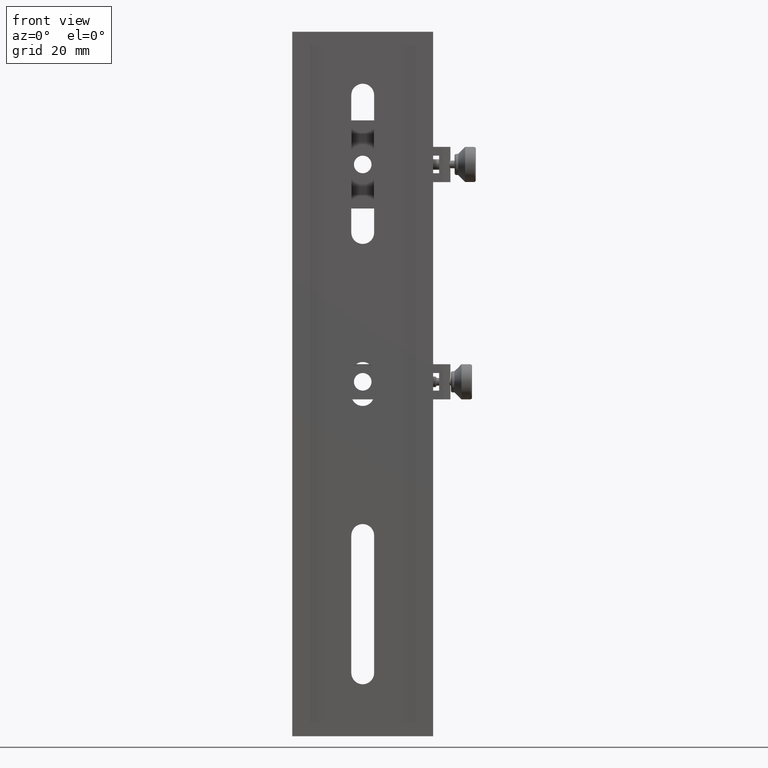
[diagram: clean part render]
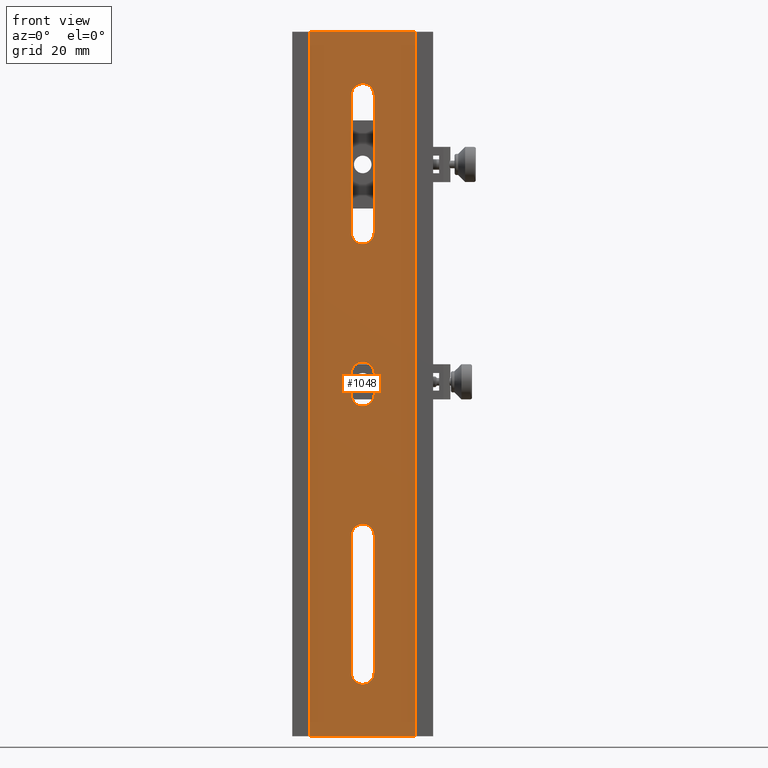
[diagram: same view with one face highlighted and labeled with its STEP entity id]
A machine part, front view. The second image highlights one B-rep face of the part: STEP entity #1048.
In plain terms, the highlighted planar face has unit normal (0, -1, 0).
Its self-contained STEP definition (entity closure, byte-faithful):
#56 = VECTOR ( 'NONE', #2789, 1000.000000000000000 ) ;
#76 = VERTEX_POINT ( 'NONE', #4436 ) ;
#87 = DIRECTION ( 'NONE',  ( -1.836970198721029934E-16, -1.000000000000000000, 0.000000000000000000 ) ) ;
#123 = CARTESIAN_POINT ( 'NONE',  ( 1.795495241083097500E-15, 81.99999999999998579, 5.999999999999996447 ) ) ;
#129 = CARTESIAN_POINT ( 'NONE',  ( -3.249999999999996003, -43.00000000000000711, 5.999999999999996447 ) ) ;
#178 = DIRECTION ( 'NONE',  ( -0.000000000000000000, 0.000000000000000000, 1.000000000000000000 ) ) ;
#186 = CARTESIAN_POINT ( 'NONE',  ( 3.249999999999996447, -5.970153145843339459E-16, 5.999999999999996447 ) ) ;
#194 = CIRCLE ( 'NONE', #3791, 3.249999999999997780 ) ;
#324 = VERTEX_POINT ( 'NONE', #5156 ) ;
#441 = EDGE_LOOP ( 'NONE', ( #1715, #2904, #1237, #5785 ) ) ;
#454 = EDGE_CURVE ( 'NONE', #324, #3837, #1674, .T. ) ;
#481 = CARTESIAN_POINT ( 'NONE',  ( 14.99999999999998579, 100.0000000000000000, 5.999999999999996447 ) ) ;
#489 = CARTESIAN_POINT ( 'NONE',  ( 3.249999999999996447, -3.000000000000000000, 5.999999999999996447 ) ) ;
#581 = ORIENTED_EDGE ( 'NONE', *, *, #1303, .F. ) ;
#613 = VERTEX_POINT ( 'NONE', #4920 ) ;
#623 = VECTOR ( 'NONE', #2086, 1000.000000000000000 ) ;
#634 = DIRECTION ( 'NONE',  ( -0.000000000000000000, 0.000000000000000000, 1.000000000000000000 ) ) ;
#635 = LINE ( 'NONE', #186, #6027 ) ;
#693 = DIRECTION ( 'NONE',  ( 1.000000000000000000, 0.000000000000000000, 0.000000000000000000 ) ) ;
#878 = AXIS2_PLACEMENT_3D ( 'NONE', #5486, #5945, #6372 ) ;
#925 = VECTOR ( 'NONE', #4264, 1000.000000000000000 ) ;
#932 = EDGE_CURVE ( 'NONE', #76, #1782, #1132, .T. ) ;
#987 = ORIENTED_EDGE ( 'NONE', *, *, #1439, .F. ) ;
#1014 = AXIS2_PLACEMENT_3D ( 'NONE', #123, #2135, #4164 ) ;
#1048 = ADVANCED_FACE ( 'NONE', ( #4355, #2387, #5346, #2320 ), #3394, .T. ) ;
#1078 = CARTESIAN_POINT ( 'NONE',  ( -5.510910596163088569E-16, -3.000000000000000000, 5.999999999999996447 ) ) ;
#1114 = AXIS2_PLACEMENT_3D ( 'NONE', #3950, #4849, #6392 ) ;
#1121 = VERTEX_POINT ( 'NONE', #3365 ) ;
#1132 = LINE ( 'NONE', #2689, #56 ) ;
#1187 = CARTESIAN_POINT ( 'NONE',  ( 3.249999999999991562, 43.00000000000000711, 5.999999999999996447 ) ) ;
#1237 = ORIENTED_EDGE ( 'NONE', *, *, #2476, .F. ) ;
#1264 = EDGE_CURVE ( 'NONE', #1445, #1121, #1470, .T. ) ;
#1303 = EDGE_CURVE ( 'NONE', #4275, #613, #6034, .T. ) ;
#1325 = VERTEX_POINT ( 'NONE', #1970 ) ;
#1439 = EDGE_CURVE ( 'NONE', #1325, #4275, #194, .T. ) ;
#1445 = VERTEX_POINT ( 'NONE', #2230 ) ;
#1470 = LINE ( 'NONE', #6064, #5658 ) ;
#1471 = CARTESIAN_POINT ( 'NONE',  ( 3.249999999999991118, -81.99999999999998579, 5.999999999999996447 ) ) ;
#1481 = VECTOR ( 'NONE', #4433, 1000.000000000000000 ) ;
#1514 = EDGE_CURVE ( 'NONE', #4147, #4230, #1734, .T. ) ;
#1518 = VERTEX_POINT ( 'NONE', #6230 ) ;
#1546 = CIRCLE ( 'NONE', #1014, 3.249999999999997780 ) ;
#1549 = CIRCLE ( 'NONE', #2397, 3.249999999999997780 ) ;
#1566 = ORIENTED_EDGE ( 'NONE', *, *, #5272, .F. ) ;
#1569 = DIRECTION ( 'NONE',  ( 1.000000000000000000, -0.000000000000000000, 0.000000000000000000 ) ) ;
#1620 = VERTEX_POINT ( 'NONE', #4160 ) ;
#1660 = DIRECTION ( 'NONE',  ( 1.000000000000000000, 0.000000000000000000, 0.000000000000000000 ) ) ;
#1674 = LINE ( 'NONE', #4332, #925 ) ;
#1715 = ORIENTED_EDGE ( 'NONE', *, *, #4767, .F. ) ;
#1734 = LINE ( 'NONE', #4623, #3472 ) ;
#1767 = LINE ( 'NONE', #3867, #2647 ) ;
#1782 = VERTEX_POINT ( 'NONE', #3831 ) ;
#1970 = CARTESIAN_POINT ( 'NONE',  ( 3.249999999999998668, -43.00000000000000711, 5.999999999999996447 ) ) ;
#2086 = DIRECTION ( 'NONE',  ( 1.236303256585107026E-16, -1.000000000000000000, 0.000000000000000000 ) ) ;
#2122 = CARTESIAN_POINT ( 'NONE',  ( 5.510910596163088569E-16, 3.000000000000000000, 5.999999999999996447 ) ) ;
#2135 = DIRECTION ( 'NONE',  ( -0.000000000000000000, 0.000000000000000000, 1.000000000000000000 ) ) ;
#2162 = LINE ( 'NONE', #4193, #4017 ) ;
#2224 = VERTEX_POINT ( 'NONE', #481 ) ;
#2230 = CARTESIAN_POINT ( 'NONE',  ( -15.00000000000003730, -100.0000000000000000, 5.999999999999998224 ) ) ;
#2320 = FACE_BOUND ( 'NONE', #4919, .T. ) ;
#2387 = FACE_OUTER_BOUND ( 'NONE', #6080, .T. ) ;
#2397 = AXIS2_PLACEMENT_3D ( 'NONE', #5697, #178, #693 ) ;
#2476 = EDGE_CURVE ( 'NONE', #1782, #4230, #5532, .T. ) ;
#2583 = CARTESIAN_POINT ( 'NONE',  ( -15.00000000000003730, 294.6622748219313621, 5.999999999999996447 ) ) ;
#2590 = ORIENTED_EDGE ( 'NONE', *, *, #3463, .T. ) ;
#2630 = VERTEX_POINT ( 'NONE', #1471 ) ;
#2647 = VECTOR ( 'NONE', #5318, 1000.000000000000000 ) ;
#2689 = CARTESIAN_POINT ( 'NONE',  ( -3.250000000000011102, 5.970153145843367069E-16, 5.999999999999996447 ) ) ;
#2693 = DIRECTION ( 'NONE',  ( -1.836970198721029934E-16, -1.000000000000000000, 0.000000000000000000 ) ) ;
#2789 = DIRECTION ( 'NONE',  ( -1.836970198721029934E-16, -1.000000000000000000, 0.000000000000000000 ) ) ;
#2870 = CARTESIAN_POINT ( 'NONE',  ( -2.407148620655123076E-16, 100.0000000000000000, 5.999999999999998224 ) ) ;
#2904 = ORIENTED_EDGE ( 'NONE', *, *, #1514, .T. ) ;
#2997 = DIRECTION ( 'NONE',  ( -1.836970198721029934E-16, -1.000000000000000000, 0.000000000000000000 ) ) ;
#3239 = VECTOR ( 'NONE', #2997, 1000.000000000000000 ) ;
#3365 = CARTESIAN_POINT ( 'NONE',  ( 15.00000000000001066, -100.0000000000000284, 5.999999999999996447 ) ) ;
#3394 = PLANE ( 'NONE',  #1114 ) ;
#3463 = EDGE_CURVE ( 'NONE', #1620, #6148, #635, .T. ) ;
#3472 = VECTOR ( 'NONE', #87, 1000.000000000000000 ) ;
#3475 = EDGE_CURVE ( 'NONE', #1325, #2630, #2162, .T. ) ;
#3482 = EDGE_CURVE ( 'NONE', #1121, #2224, #1767, .T. ) ;
#3591 = CARTESIAN_POINT ( 'NONE',  ( -3.249999999999998224, -2.999999999999999556, 5.999999999999996447 ) ) ;
#3658 = LINE ( 'NONE', #2583, #623 ) ;
#3686 = EDGE_LOOP ( 'NONE', ( #581, #987, #4031, #1566 ) ) ;
#3764 = DIRECTION ( 'NONE',  ( 1.000000000000000000, 0.000000000000000000, 0.000000000000000000 ) ) ;
#3791 = AXIS2_PLACEMENT_3D ( 'NONE', #5771, #634, #3764 ) ;
#3814 = ORIENTED_EDGE ( 'NONE', *, *, #5236, .F. ) ;
#3822 = EDGE_CURVE ( 'NONE', #1518, #1445, #3658, .T. ) ;
#3831 = CARTESIAN_POINT ( 'NONE',  ( -3.250000000000002665, 43.00000000000000711, 5.999999999999996447 ) ) ;
#3837 = VERTEX_POINT ( 'NONE', #3591 ) ;
#3867 = CARTESIAN_POINT ( 'NONE',  ( 14.99999999999996092, 294.6622748219313621, 5.999999999999996447 ) ) ;
#3936 = LINE ( 'NONE', #2870, #1481 ) ;
#3950 = CARTESIAN_POINT ( 'NONE',  ( 0.000000000000000000, 0.000000000000000000, 5.999999999999996447 ) ) ;
#4017 = VECTOR ( 'NONE', #2693, 1000.000000000000000 ) ;
#4031 = ORIENTED_EDGE ( 'NONE', *, *, #3475, .T. ) ;
#4108 = EDGE_CURVE ( 'NONE', #3837, #6148, #6242, .T. ) ;
#4147 = VERTEX_POINT ( 'NONE', #5587 ) ;
#4160 = CARTESIAN_POINT ( 'NONE',  ( 3.249999999999997335, 3.000000000000000000, 5.999999999999996447 ) ) ;
#4164 = DIRECTION ( 'NONE',  ( 1.000000000000000000, 0.000000000000000000, 0.000000000000000000 ) ) ;
#4193 = CARTESIAN_POINT ( 'NONE',  ( 3.250000000000006217, -5.970153145843359180E-16, 5.999999999999996447 ) ) ;
#4230 = VERTEX_POINT ( 'NONE', #1187 ) ;
#4264 = DIRECTION ( 'NONE',  ( -1.836970198721029441E-16, -1.000000000000000000, 0.000000000000000000 ) ) ;
#4267 = ORIENTED_EDGE ( 'NONE', *, *, #454, .F. ) ;
#4275 = VERTEX_POINT ( 'NONE', #129 ) ;
#4332 = CARTESIAN_POINT ( 'NONE',  ( -3.249999999999998224, 5.970153145843342417E-16, 5.999999999999996447 ) ) ;
#4355 = FACE_BOUND ( 'NONE', #3686, .T. ) ;
#4433 = DIRECTION ( 'NONE',  ( 1.000000000000000000, -0.000000000000000000, 0.000000000000000000 ) ) ;
#4436 = CARTESIAN_POINT ( 'NONE',  ( -3.249999999999996003, 81.99999999999998579, 5.999999999999996447 ) ) ;
#4450 = EDGE_CURVE ( 'NONE', #1518, #2224, #3936, .T. ) ;
#4623 = CARTESIAN_POINT ( 'NONE',  ( 3.249999999999983569, -5.970153145843316779E-16, 5.999999999999996447 ) ) ;
#4767 = EDGE_CURVE ( 'NONE', #4147, #76, #1546, .T. ) ;
#4849 = DIRECTION ( 'NONE',  ( -0.000000000000000000, 0.000000000000000000, 1.000000000000000000 ) ) ;
#4919 = EDGE_LOOP ( 'NONE', ( #3814, #2590, #5393, #4267 ) ) ;
#4920 = CARTESIAN_POINT ( 'NONE',  ( -3.250000000000002665, -81.99999999999998579, 5.999999999999996447 ) ) ;
#5156 = CARTESIAN_POINT ( 'NONE',  ( -3.249999999999997780, 3.000000000000000444, 5.999999999999996447 ) ) ;
#5186 = ORIENTED_EDGE ( 'NONE', *, *, #1264, .T. ) ;
#5217 = DIRECTION ( 'NONE',  ( -1.836970198721029441E-16, -1.000000000000000000, 0.000000000000000000 ) ) ;
#5236 = EDGE_CURVE ( 'NONE', #1620, #324, #6074, .T. ) ;
#5272 = EDGE_CURVE ( 'NONE', #613, #2630, #1549, .T. ) ;
#5300 = AXIS2_PLACEMENT_3D ( 'NONE', #1078, #5960, #6073 ) ;
#5318 = DIRECTION ( 'NONE',  ( -1.236303256585107026E-16, 1.000000000000000000, -0.000000000000000000 ) ) ;
#5346 = FACE_BOUND ( 'NONE', #441, .T. ) ;
#5367 = ORIENTED_EDGE ( 'NONE', *, *, #4450, .F. ) ;
#5393 = ORIENTED_EDGE ( 'NONE', *, *, #4108, .F. ) ;
#5486 = CARTESIAN_POINT ( 'NONE',  ( -5.368688533928914978E-15, 43.00000000000000711, 5.999999999999996447 ) ) ;
#5532 = CIRCLE ( 'NONE', #878, 3.249999999999997780 ) ;
#5587 = CARTESIAN_POINT ( 'NONE',  ( 3.249999999999998668, 81.99999999999998579, 5.999999999999996447 ) ) ;
#5642 = ORIENTED_EDGE ( 'NONE', *, *, #3482, .T. ) ;
#5658 = VECTOR ( 'NONE', #1569, 1000.000000000000000 ) ;
#5697 = CARTESIAN_POINT ( 'NONE',  ( -5.368688533928914978E-15, -81.99999999999998579, 5.999999999999996447 ) ) ;
#5771 = CARTESIAN_POINT ( 'NONE',  ( 1.795495241083097500E-15, -43.00000000000000711, 5.999999999999996447 ) ) ;
#5785 = ORIENTED_EDGE ( 'NONE', *, *, #932, .F. ) ;
#5945 = DIRECTION ( 'NONE',  ( -0.000000000000000000, 0.000000000000000000, 1.000000000000000000 ) ) ;
#5960 = DIRECTION ( 'NONE',  ( -0.000000000000000000, 0.000000000000000000, 1.000000000000000000 ) ) ;
#5970 = ORIENTED_EDGE ( 'NONE', *, *, #3822, .T. ) ;
#6027 = VECTOR ( 'NONE', #5217, 1000.000000000000000 ) ;
#6034 = LINE ( 'NONE', #6100, #3239 ) ;
#6064 = CARTESIAN_POINT ( 'NONE',  ( -2.407148620655123076E-16, -100.0000000000000000, 5.999999999999998224 ) ) ;
#6073 = DIRECTION ( 'NONE',  ( 1.000000000000000000, 0.000000000000000000, 0.000000000000000000 ) ) ;
#6074 = CIRCLE ( 'NONE', #6200, 3.249999999999997780 ) ;
#6080 = EDGE_LOOP ( 'NONE', ( #5970, #5186, #5642, #5367 ) ) ;
#6100 = CARTESIAN_POINT ( 'NONE',  ( -3.249999999999988010, 5.970153145843325654E-16, 5.999999999999996447 ) ) ;
#6148 = VERTEX_POINT ( 'NONE', #489 ) ;
#6192 = DIRECTION ( 'NONE',  ( -0.000000000000000000, 0.000000000000000000, 1.000000000000000000 ) ) ;
#6200 = AXIS2_PLACEMENT_3D ( 'NONE', #2122, #6192, #1660 ) ;
#6230 = CARTESIAN_POINT ( 'NONE',  ( -15.00000000000001421, 100.0000000000000000, 5.999999999999996447 ) ) ;
#6242 = CIRCLE ( 'NONE', #5300, 3.249999999999997780 ) ;
#6372 = DIRECTION ( 'NONE',  ( 1.000000000000000000, 0.000000000000000000, 0.000000000000000000 ) ) ;
#6392 = DIRECTION ( 'NONE',  ( 1.000000000000000000, 0.000000000000000000, 0.000000000000000000 ) ) ;